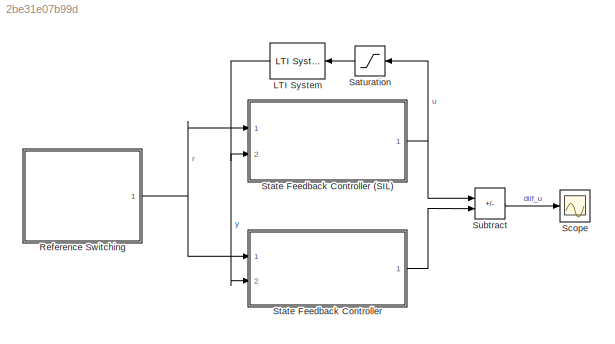
MODEL slx_2be31e07b99d
KIND model
CONFIG AbsTol = auto
CONFIG EnableMultiTasking = on
CONFIG MaxStep = auto
CONFIG MinStep = auto
CONFIG RelTol = 1e-3
CONFIG SampleTimeConstraint = Unconstrained
CONFIG SolverName = VariableStepAuto
CONFIG StartTime = 0.0
CONFIG StopTime = 15
BLOCK [Reference] LTI System  REF=cstblocks/LTI System
  NameLocation = top
  Ports = [1, 1]
  SourceBlock = cstblocks/LTI System
  SourceProductBaseCode = CT
  SourceType = LTI Block
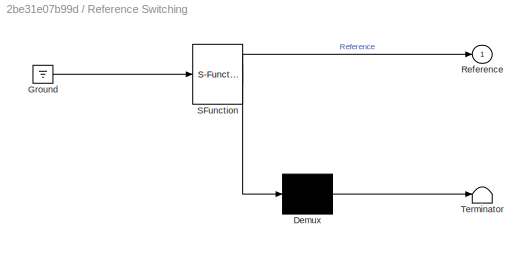
BLOCK [SubSystem] Reference Switching
  ErrorFcn = Stateflow.Translate.translate
  PermitHierarchicalResolution = ExplicitOnly
  Ports = [0, 1]
  RequestExecContextInheritance = off
  SFBlockType = Chart
  TreatAsAtomicUnit = on
BLOCK [Demux] Reference Switching/ Demux 
  Outputs = 1
  Ports = [1, 1]
BLOCK [Ground] Reference Switching/ Ground 
BLOCK [S-Function] Reference Switching/ SFunction 
  EnableBusSupport = on
  FunctionName = sf_sfun
  PortCounts = [1 2]
  Ports = [1, 2]
  SFcnIsStateOwnerBlock = off
  SFunctionDeploymentMode = off
  Tag = Stateflow S-Function 3
BLOCK [Terminator] Reference Switching/ Terminator 
BLOCK [Outport] Reference Switching/Reference
BLOCK [Saturate] Saturation
  LowerLimit = -12
  UpperLimit = 12
BLOCK [Scope] Scope
  Floating = off
  NumInputPorts = 1
  Ports = [1]
  ScopeSpecificationString = Simulink.scopes.TimeScopeBlockCfg('CurrentConfiguration', extmgr.ConfigurationSet(extmgr.Configuration('Core','General UI',true),extmgr.Configuration('Core','Source UI',true),extmgr.Configuration('Sources','WiredSimulink',true),extmgr.Configuration('Visuals','Time Domain',true,'SerializedDisplays',{struct('MinYLimReal','-1.00000','MaxYLimReal','1.00000','YLabelReal','','MinYLimMag','0.00000','MaxY...<+1328ch>
BLOCK [ModelReference] State Feedback Controller
  ModelNameDialog = Controller_Observer_Model.slx
  ModelReferenceVersion = 1.47
  Ports = [2, 1]
BLOCK [ModelReference] State Feedback Controller (SIL)
  ModelNameDialog = Controller_Observer_Model.slx
  ModelReferenceVersion = 1.47
  Ports = [2, 1]
BLOCK [Sum] Subtract
  IconShape = rectangular
  Inputs = +-
  Ports = [2, 1]
NET LTI System:1 -> State Feedback Controller (SIL):2, State Feedback Controller:2
NET Reference Switching:1 -> State Feedback Controller (SIL):1, State Feedback Controller:1
LINE Saturation:1 -> LTI System:1
NET State Feedback Controller (SIL):1 -> Saturation:1, Subtract:1
LINE State Feedback Controller:1 -> Subtract:2
LINE Subtract:1 -> Scope:1
note: NET lines group one-source signal fan-out (src -> all destinations, sorted); 1:1 wires keep LINE
CHART Reference Switching states=5 transitions=6
  STATE_LABEL 'S1\nReference=0;'
  STATE_LABEL 'S2\nReference=-pi;'
  STATE_LABEL 'S3\nReference=pi;'
  STATE_LABEL 's6\nReference=0;'
  STATE_LABEL 's5\nReference=2*pi;'
CHART  states=0 transitions=0
